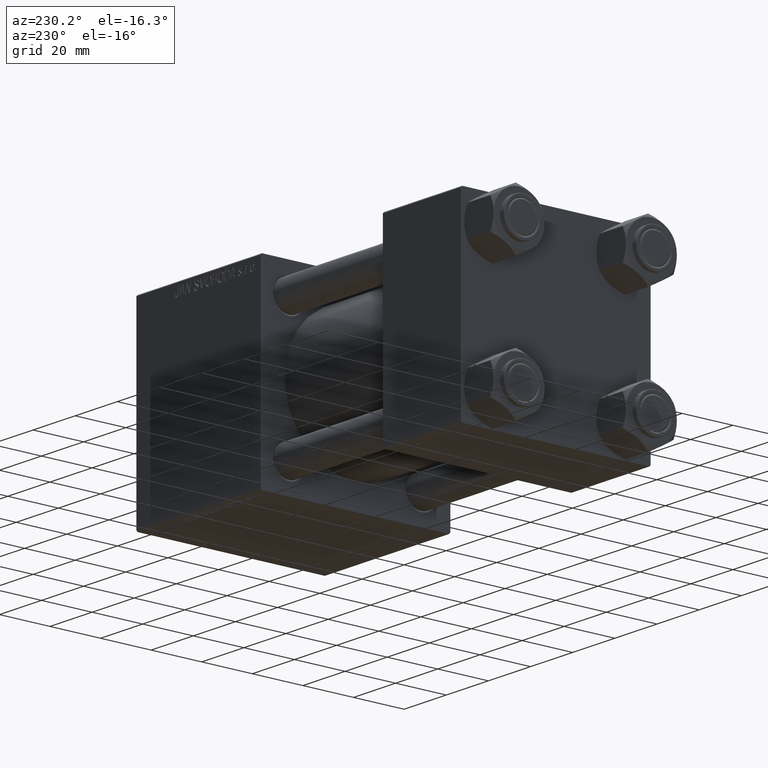
[diagram: clean part render]
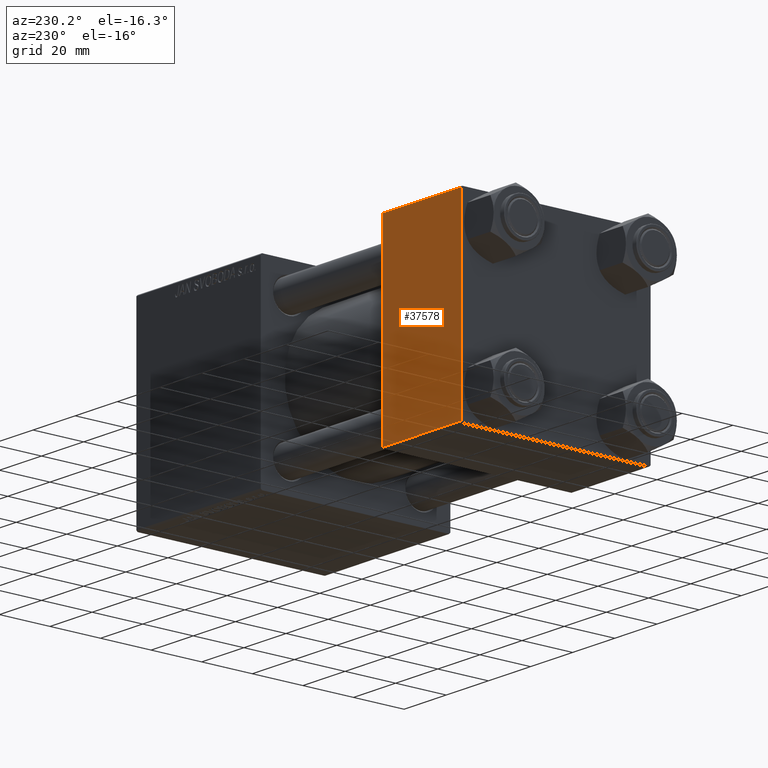
[diagram: same view with one face highlighted and labeled with its STEP entity id]
A machine part, auxiliary view. The second image highlights one B-rep face of the part: STEP entity #37578.
In plain terms, the highlighted planar face has unit normal (0, 1, 0).
Its self-contained STEP definition (entity closure, byte-faithful):
#444 = VERTEX_POINT ( 'NONE', #17409 ) ;
#1018 = LINE ( 'NONE', #48705, #1690 ) ;
#1048 = ORIENTED_EDGE ( 'NONE', *, *, #32955, .T. ) ;
#1255 = VECTOR ( 'NONE', #6812, 1000.000000000000000 ) ;
#1690 = VECTOR ( 'NONE', #37539, 1000.000000000000000 ) ;
#2774 = CARTESIAN_POINT ( 'NONE',  ( 37.00000000000000000, 37.49999999999999289, -36.99999999999998579 ) ) ;
#6812 = DIRECTION ( 'NONE',  ( -1.000000000000000000, 0.000000000000000000, 0.000000000000000000 ) ) ;
#7920 = CARTESIAN_POINT ( 'NONE',  ( 0.000000000000000000, 37.49999999999999289, 37.00000000000000000 ) ) ;
#11511 = CARTESIAN_POINT ( 'NONE',  ( 37.00000000000000000, 37.49999999999999289, 37.50000000000000000 ) ) ;
#13641 = ORIENTED_EDGE ( 'NONE', *, *, #49944, .T. ) ;
#14216 = LINE ( 'NONE', #29707, #47789 ) ;
#15772 = CARTESIAN_POINT ( 'NONE',  ( 0.000000000000000000, 37.49999999999999289, -36.99999999999998579 ) ) ;
#17409 = CARTESIAN_POINT ( 'NONE',  ( 37.00000000000000000, 37.49999999999999289, -36.99999999999998579 ) ) ;
#18259 = EDGE_CURVE ( 'NONE', #44916, #22875, #1018, .T. ) ;
#18276 = ORIENTED_EDGE ( 'NONE', *, *, #39481, .T. ) ;
#18623 = DIRECTION ( 'NONE',  ( 0.000000000000000000, 0.000000000000000000, -1.000000000000000000 ) ) ;
#22875 = VERTEX_POINT ( 'NONE', #15772 ) ;
#24342 = PLANE ( 'NONE',  #45487 ) ;
#25213 = VERTEX_POINT ( 'NONE', #47092 ) ;
#29707 = CARTESIAN_POINT ( 'NONE',  ( 37.00000000000000000, 37.49999999999999289, 37.00000000000000000 ) ) ;
#30052 = VECTOR ( 'NONE', #18623, 1000.000000000000000 ) ;
#31449 = DIRECTION ( 'NONE',  ( -0.000000000000000000, 1.000000000000000000, 0.000000000000000000 ) ) ;
#32955 = EDGE_CURVE ( 'NONE', #44916, #25213, #14216, .T. ) ;
#33317 = EDGE_LOOP ( 'NONE', ( #18276, #13641, #44150, #1048 ) ) ;
#33533 = DIRECTION ( 'NONE',  ( 1.000000000000000000, 0.000000000000000000, 0.000000000000000000 ) ) ;
#37539 = DIRECTION ( 'NONE',  ( 0.000000000000000000, 0.000000000000000000, -1.000000000000000000 ) ) ;
#37578 = ADVANCED_FACE ( 'NONE', ( #43378 ), #24342, .T. ) ;
#38303 = LINE ( 'NONE', #2774, #1255 ) ;
#39481 = EDGE_CURVE ( 'NONE', #25213, #444, #49840, .T. ) ;
#39834 = DIRECTION ( 'NONE',  ( 0.000000000000000000, -0.000000000000000000, 1.000000000000000000 ) ) ;
#43378 = FACE_OUTER_BOUND ( 'NONE', #33317, .T. ) ;
#43626 = CARTESIAN_POINT ( 'NONE',  ( 37.00000000000000000, 37.49999999999999289, 37.50000000000000000 ) ) ;
#44150 = ORIENTED_EDGE ( 'NONE', *, *, #18259, .F. ) ;
#44916 = VERTEX_POINT ( 'NONE', #7920 ) ;
#45487 = AXIS2_PLACEMENT_3D ( 'NONE', #43626, #31449, #39834 ) ;
#47092 = CARTESIAN_POINT ( 'NONE',  ( 37.00000000000000000, 37.49999999999999289, 37.00000000000000000 ) ) ;
#47789 = VECTOR ( 'NONE', #33533, 1000.000000000000000 ) ;
#48705 = CARTESIAN_POINT ( 'NONE',  ( 0.000000000000000000, 37.49999999999999289, 37.50000000000000000 ) ) ;
#49840 = LINE ( 'NONE', #11511, #30052 ) ;
#49944 = EDGE_CURVE ( 'NONE', #444, #22875, #38303, .T. ) ;